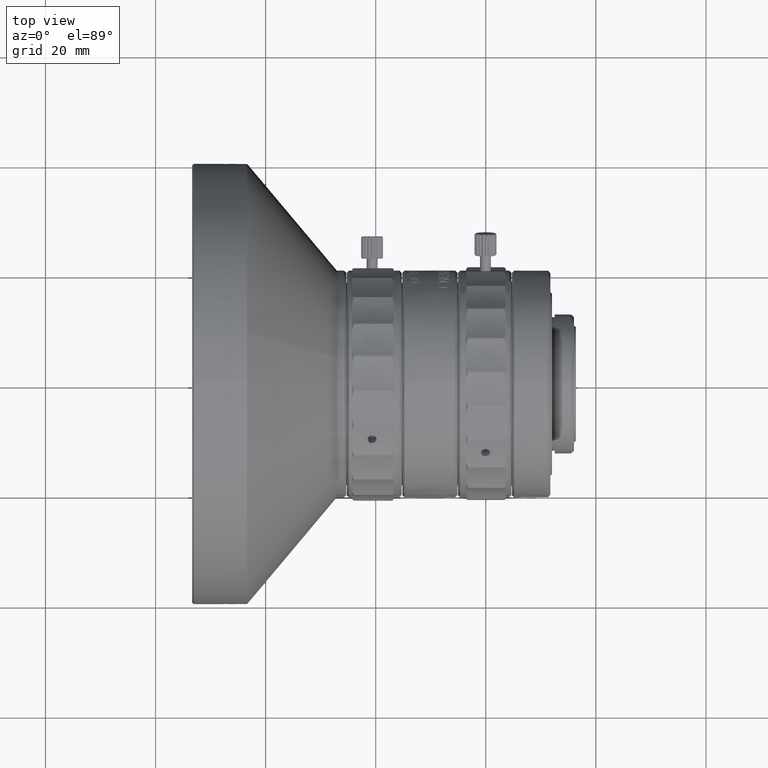
[diagram: clean part render]
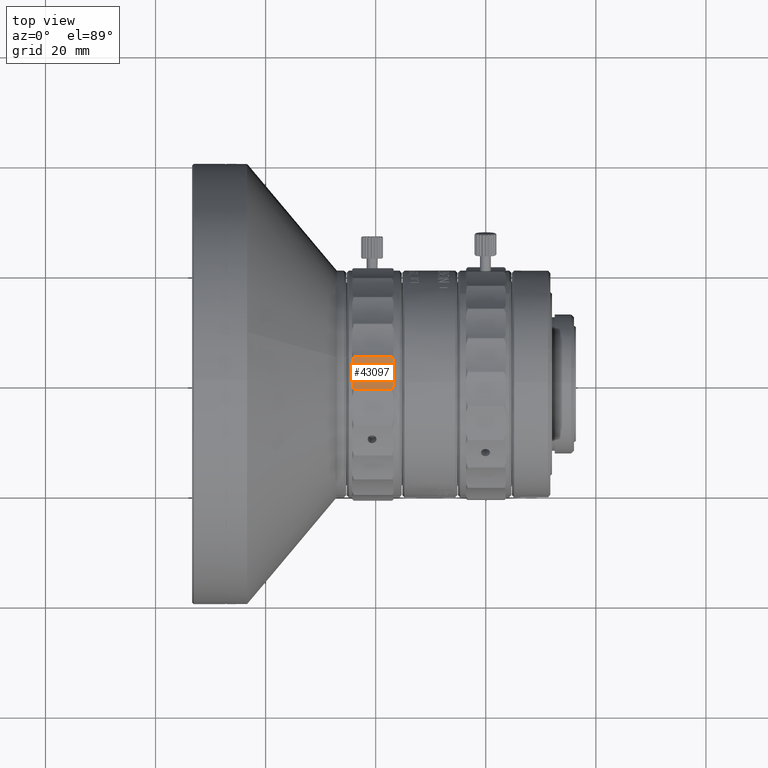
[diagram: same view with one face highlighted and labeled with its STEP entity id]
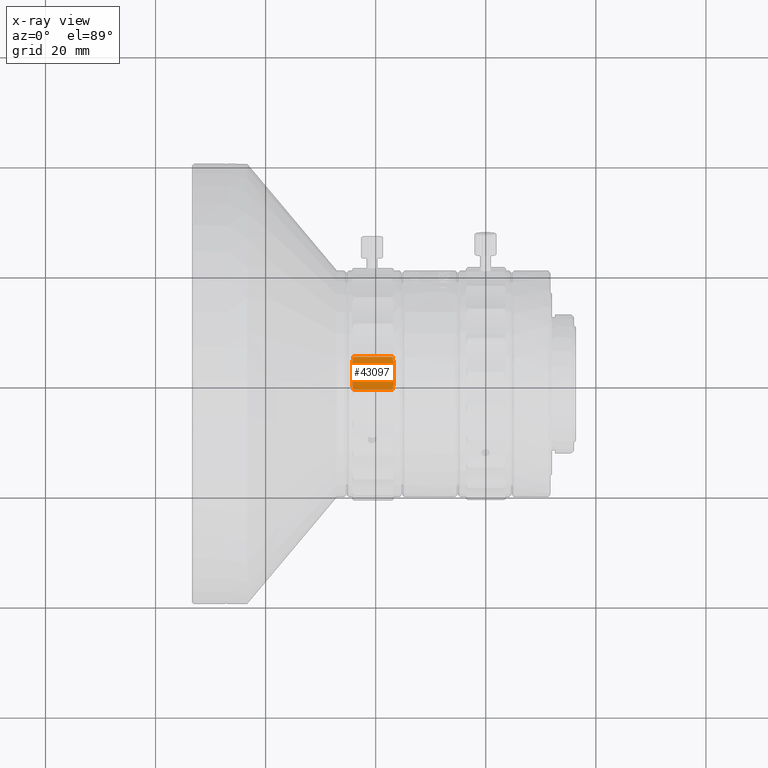
[diagram: x-ray of the same camera — body ghosted, the highlighted face saturated]
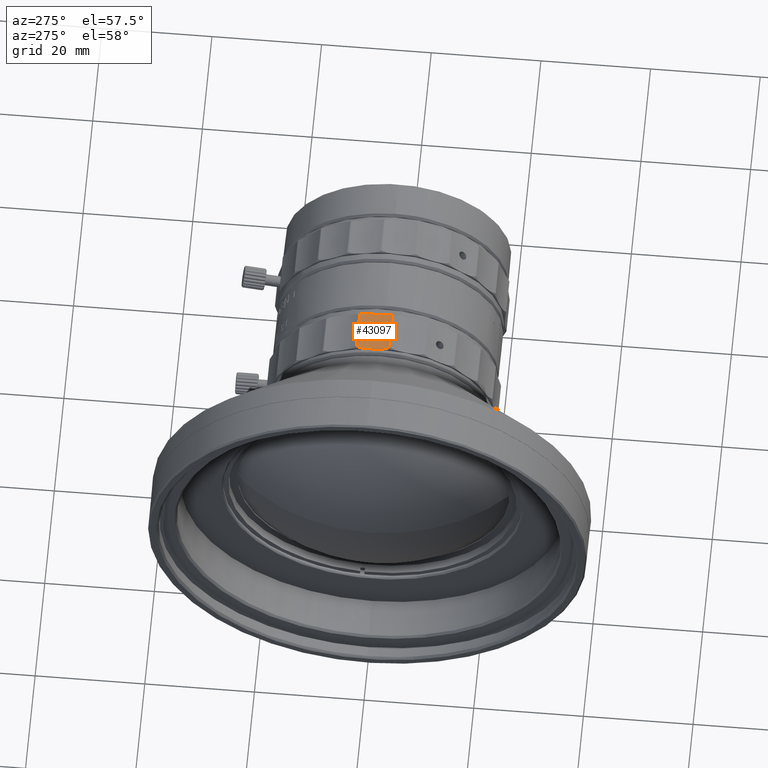
[diagram: same view with one face highlighted and labeled with its STEP entity id]
A machine part, top view. The second image highlights one B-rep face of the part: STEP entity #43097.
The next image is the same camera in x-ray: the body ghosted, the highlighted face saturated — about 0% of this face is hidden behind the body in this view.
A second angle (auxiliary view) of the same face is appended — the face is thin or edge-on in the first view.
In plain terms, the highlighted cylindrical surface (partial cylindrical patch) has radius 17.5 mm, axis along (1, 0, 0).
Its self-contained STEP definition (entity closure, byte-faithful):
#3320 = CARTESIAN_POINT ( 'NONE',  ( 23.24000000000000199, -0.5106576401896100181, 20.94377538293780106 ) ) ;
#3535 = EDGE_CURVE ( 'NONE', #9550, #31758, #25257, .T. ) ;
#4636 = CARTESIAN_POINT ( 'NONE',  ( 22.99304956847070258, 4.562352960884219932, 20.70013630518110048 ) ) ;
#4922 = CARTESIAN_POINT ( 'NONE',  ( 23.23999999944340189, 3.626461755400820053, 20.63374118410770208 ) ) ;
#4949 = ORIENTED_EDGE ( 'NONE', *, *, #32984, .T. ) ;
#4981 = CARTESIAN_POINT ( 'NONE',  ( 22.99304956819459989, -1.426200025393149939, 21.14891631019040119 ) ) ;
#6612 = VERTEX_POINT ( 'NONE', #4981 ) ;
#6634 = CARTESIAN_POINT ( 'NONE',  ( 23.06893559334794119, 4.318257582033892206, 20.67622810573819692 ) ) ;
#8337 = VERTEX_POINT ( 'NONE', #43855 ) ;
#8416 = EDGE_CURVE ( 'NONE', #8337, #39247, #31268, .T. ) ;
#8499 = AXIS2_PLACEMENT_3D ( 'NONE', #74864, #74480, #8952 ) ;
#8952 = DIRECTION ( 'NONE',  ( -1.047772821106448439E-12, 0.04400018120602781219, -0.9990315230531199298 ) ) ;
#9371 = EDGE_CURVE ( 'NONE', #40388, #8337, #72406, .T. ) ;
#9550 = VERTEX_POINT ( 'NONE', #49710 ) ;
#9709 = DIRECTION ( 'NONE',  ( 1.000000000000000000, 0.000000000000000000, 0.000000000000000000 ) ) ;
#12194 = CARTESIAN_POINT ( 'NONE',  ( 15.73999999979720066, -0.5106576323297851161, 20.94377541752810146 ) ) ;
#13052 = CARTESIAN_POINT ( 'NONE',  ( 22.99304956819459989, -1.426200025393149939, 21.14891631019040119 ) ) ;
#13438 = CARTESIAN_POINT ( 'NONE',  ( 23.09052535500000403, -1.120738010066820056, 21.07181829702789955 ) ) ;
#13649 = CARTESIAN_POINT ( 'NONE',  ( 15.78685502529631179, -0.7132246940824750192, 20.98473647651462315 ) ) ;
#13946 = VECTOR ( 'NONE', #26112, 1000.000000000000000 ) ;
#14045 = CARTESIAN_POINT ( 'NONE',  ( 15.84436593906477597, -0.9506543958418365303, 21.03420824110084553 ) ) ;
#14126 = VERTEX_POINT ( 'NONE', #71521 ) ;
#14253 = VERTEX_POINT ( 'NONE', #58774 ) ;
#15944 = AXIS2_PLACEMENT_3D ( 'NONE', #63434, #9709, #55633 ) ;
#18095 = CARTESIAN_POINT ( 'NONE',  ( 15.75487468541162883, -0.5781511235053865549, 20.95700887589582706 ) ) ;
#18467 = CARTESIAN_POINT ( 'NONE',  ( 15.74000000055660031, 3.626461759459960188, 20.63374118246520439 ) ) ;
#19822 = CARTESIAN_POINT ( 'NONE',  ( 15.74000000000049937, 2.856458733999940325, 38.11679284099900400 ) ) ;
#21421 = EDGE_CURVE ( 'NONE', #53922, #14126, #36564, .T. ) ;
#23422 = EDGE_CURVE ( 'NONE', #6612, #40388, #68684, .T. ) ;
#25257 = B_SPLINE_CURVE_WITH_KNOTS ( 'NONE', 3,
 ( #13649, #14045, #55225, #37614 ),
 .UNSPECIFIED., .F., .F.,
 ( 4, 4 ),
 ( -0.7785115335359458211, 1.110223024625156540E-16 ),
 .UNSPECIFIED. ) ;
#25555 = CARTESIAN_POINT ( 'NONE',  ( 15.88947464500000173, 4.248811843395870369, 20.66942616392150001 ) ) ;
#26112 = DIRECTION ( 'NONE',  ( 1.000000000000000000, -7.747643785870809989E-10, -4.326227214028169654E-11 ) ) ;
#26830 = ORIENTED_EDGE ( 'NONE', *, *, #8416, .T. ) ;
#30336 = VECTOR ( 'NONE', #75668, 1000.000000000000000 ) ;
#31268 = B_SPLINE_CURVE_WITH_KNOTS ( 'NONE', 3,
 ( #4922, #58264, #70837, #52801 ),
 .UNSPECIFIED., .F., .F.,
 ( 4, 4 ),
 ( -1.000000000000000000, -0.7785115419861667885 ),
 .UNSPECIFIED. ) ;
#31758 = VERTEX_POINT ( 'NONE', #58575 ) ;
#32984 = EDGE_CURVE ( 'NONE', #31758, #6612, #73945, .T. ) ;
#33105 = ORIENTED_EDGE ( 'NONE', *, *, #44492, .T. ) ;
#33115 = CARTESIAN_POINT ( 'NONE',  ( 15.98695043146650185, -1.426200020127380119, 21.14891631019950324 ) ) ;
#33355 = ORIENTED_EDGE ( 'NONE', *, *, #9371, .T. ) ;
#33362 = EDGE_CURVE ( 'NONE', #65484, #14253, #63093, .T. ) ;
#34347 = EDGE_CURVE ( 'NONE', #14253, #14126, #60907, .T. ) ;
#36428 = ORIENTED_EDGE ( 'NONE', *, *, #3535, .T. ) ;
#36564 = CIRCLE ( 'NONE', #62851, 17.49999999999900169 ) ;
#36913 = CARTESIAN_POINT ( 'NONE',  ( 15.80715783500000171, 3.936690053431250558, 20.64740451241240038 ) ) ;
#36922 = CARTESIAN_POINT ( 'NONE',  ( 15.77049302737231962, -0.6456753537447085245, 20.97066163651616932 ) ) ;
#37262 = CARTESIAN_POINT ( 'NONE',  ( 23.13563406238008113, 4.075022429519988165, 20.65758582811243471 ) ) ;
#37302 = CARTESIAN_POINT ( 'NONE',  ( 15.98695043123559856, 4.562352958205580400, 20.70013630518739944 ) ) ;
#37614 = CARTESIAN_POINT ( 'NONE',  ( 15.98695043146650185, -1.426200020127380119, 21.14891631019950324 ) ) ;
#37656 = CARTESIAN_POINT ( 'NONE',  ( 23.19314497628871052, 3.832871233301256897, 20.64405368660494844 ) ) ;
#37684 = ORIENTED_EDGE ( 'NONE', *, *, #23422, .T. ) ;
#39040 = CARTESIAN_POINT ( 'NONE',  ( 22.99304956847070258, 4.562352960891419507, 20.70013630510759839 ) ) ;
#39164 = FACE_OUTER_BOUND ( 'NONE', #64643, .T. ) ;
#39247 = VERTEX_POINT ( 'NONE', #46495 ) ;
#39538 = CYLINDRICAL_SURFACE ( 'NONE', #15944, 17.49999999999849720 ) ;
#40388 = VERTEX_POINT ( 'NONE', #3320 ) ;
#41102 = EDGE_CURVE ( 'NONE', #39247, #65484, #70334, .T. ) ;
#43097 = ADVANCED_FACE ( 'NONE', ( #39164 ), #39538, .F. ) ;
#43855 = CARTESIAN_POINT ( 'NONE',  ( 23.23999999944340189, 3.626461755400820053, 20.63374118410770208 ) ) ;
#44492 = EDGE_CURVE ( 'NONE', #53922, #9550, #55114, .T. ) ;
#46495 = CARTESIAN_POINT ( 'NONE',  ( 23.19314497628871052, 3.832871233301256897, 20.64405368660494844 ) ) ;
#48776 = CARTESIAN_POINT ( 'NONE',  ( 23.17284216499999872, -0.8153845194596970325, 21.00352327026940102 ) ) ;
#49230 = DIRECTION ( 'NONE',  ( 1.000000000000000000, -2.619304464322640016E-15, -2.702600048469210056E-14 ) ) ;
#49710 = CARTESIAN_POINT ( 'NONE',  ( 15.78685502529631179, -0.7132246940824750192, 20.98473647651462315 ) ) ;
#52801 = CARTESIAN_POINT ( 'NONE',  ( 23.19314497628871052, 3.832871233301256897, 20.64405368660494844 ) ) ;
#53922 = VERTEX_POINT ( 'NONE', #70585 ) ;
#54140 = ORIENTED_EDGE ( 'NONE', *, *, #41102, .T. ) ;
#54994 = ORIENTED_EDGE ( 'NONE', *, *, #21421, .F. ) ;
#55086 = DIRECTION ( 'NONE',  ( -2.696255916946962456E-14, -1.795828366965274323E-10, -1.000000000000000000 ) ) ;
#55114 = B_SPLINE_CURVE_WITH_KNOTS ( 'NONE', 3,
 ( #12194, #18095, #36922, #60814 ),
 .UNSPECIFIED., .F., .F.,
 ( 4, 4 ),
 ( -1.000000000000000000, -0.7785115335359386046 ),
 .UNSPECIFIED. ) ;
#55225 = CARTESIAN_POINT ( 'NONE',  ( 15.91106440746184525, -1.188394322238160994, 21.08889461773270213 ) ) ;
#55633 = DIRECTION ( 'NONE',  ( 0.000000000000000000, -0.2447233576063440330, -0.9695929446122621975 ) ) ;
#58264 = CARTESIAN_POINT ( 'NONE',  ( 23.22512531468230534, 3.695173742775980763, 20.63676745407202873 ) ) ;
#58575 = CARTESIAN_POINT ( 'NONE',  ( 15.98695043146650185, -1.426200020127380119, 21.14891631019950324 ) ) ;
#58774 = CARTESIAN_POINT ( 'NONE',  ( 15.98695043123559856, 4.562352958205580400, 20.70013630518739944 ) ) ;
#60381 = CARTESIAN_POINT ( 'NONE',  ( 22.99304956847070258, 4.562352960891419507, 20.70013630510759839 ) ) ;
#60814 = CARTESIAN_POINT ( 'NONE',  ( 15.78685502529631179, -0.7132246940824750192, 20.98473647651462315 ) ) ;
#60907 = B_SPLINE_CURVE_WITH_KNOTS ( 'NONE', 3,
 ( #37302, #25555, #36913, #18467 ),
 .UNSPECIFIED., .F., .F.,
 ( 4, 4 ),
 ( -1.000000000000000000, 0.000000000000000000 ),
 .UNSPECIFIED. ) ;
#62851 = AXIS2_PLACEMENT_3D ( 'NONE', #19822, #49230, #55086 ) ;
#63093 = LINE ( 'NONE', #4636, #30336 ) ;
#63434 = CARTESIAN_POINT ( 'NONE',  ( 19.49000000000000199, 2.856458733999760469, 38.11679284099850662 ) ) ;
#64643 = EDGE_LOOP ( 'NONE', ( #37684, #33355, #26830, #54140, #76212, #73024, #54994, #33105, #36428, #4949 ) ) ;
#65484 = VERTEX_POINT ( 'NONE', #39040 ) ;
#68684 = B_SPLINE_CURVE_WITH_KNOTS ( 'NONE', 3,
 ( #13052, #13438, #48776, #72701 ),
 .UNSPECIFIED., .F., .F.,
 ( 4, 4 ),
 ( -1.000000000000000000, 0.000000000000000000 ),
 .UNSPECIFIED. ) ;
#70334 = B_SPLINE_CURVE_WITH_KNOTS ( 'NONE', 3,
 ( #37656, #37262, #6634, #60381 ),
 .UNSPECIFIED., .F., .F.,
 ( 4, 4 ),
 ( -0.7785115419861735608, 0.000000000000000000 ),
 .UNSPECIFIED. ) ;
#70585 = CARTESIAN_POINT ( 'NONE',  ( 15.73999999979720066, -0.5106576323297851161, 20.94377541752810146 ) ) ;
#70837 = CARTESIAN_POINT ( 'NONE',  ( 23.20950697345074687, 3.763978619429593664, 20.64020375889742454 ) ) ;
#71521 = CARTESIAN_POINT ( 'NONE',  ( 15.74000000055660031, 3.626461759459960188, 20.63374118246520439 ) ) ;
#72406 = CIRCLE ( 'NONE', #8499, 17.50000264533680294 ) ;
#72701 = CARTESIAN_POINT ( 'NONE',  ( 23.24000000000000199, -0.5106576401896100181, 20.94377538293780106 ) ) ;
#73024 = ORIENTED_EDGE ( 'NONE', *, *, #34347, .T. ) ;
#73945 = LINE ( 'NONE', #33115, #13946 ) ;
#74480 = DIRECTION ( 'NONE',  ( 1.000000000000000000, 2.306447485292714941E-14, -1.047796537314700091E-12 ) ) ;
#74864 = CARTESIAN_POINT ( 'NONE',  ( 23.24000000001830202, 2.856458467915639954, 38.11679548088599745 ) ) ;
#75668 = DIRECTION ( 'NONE',  ( -1.000000000000000000, -3.915211225087060185E-10, -3.834858267172389836E-11 ) ) ;
#76212 = ORIENTED_EDGE ( 'NONE', *, *, #33362, .T. ) ;